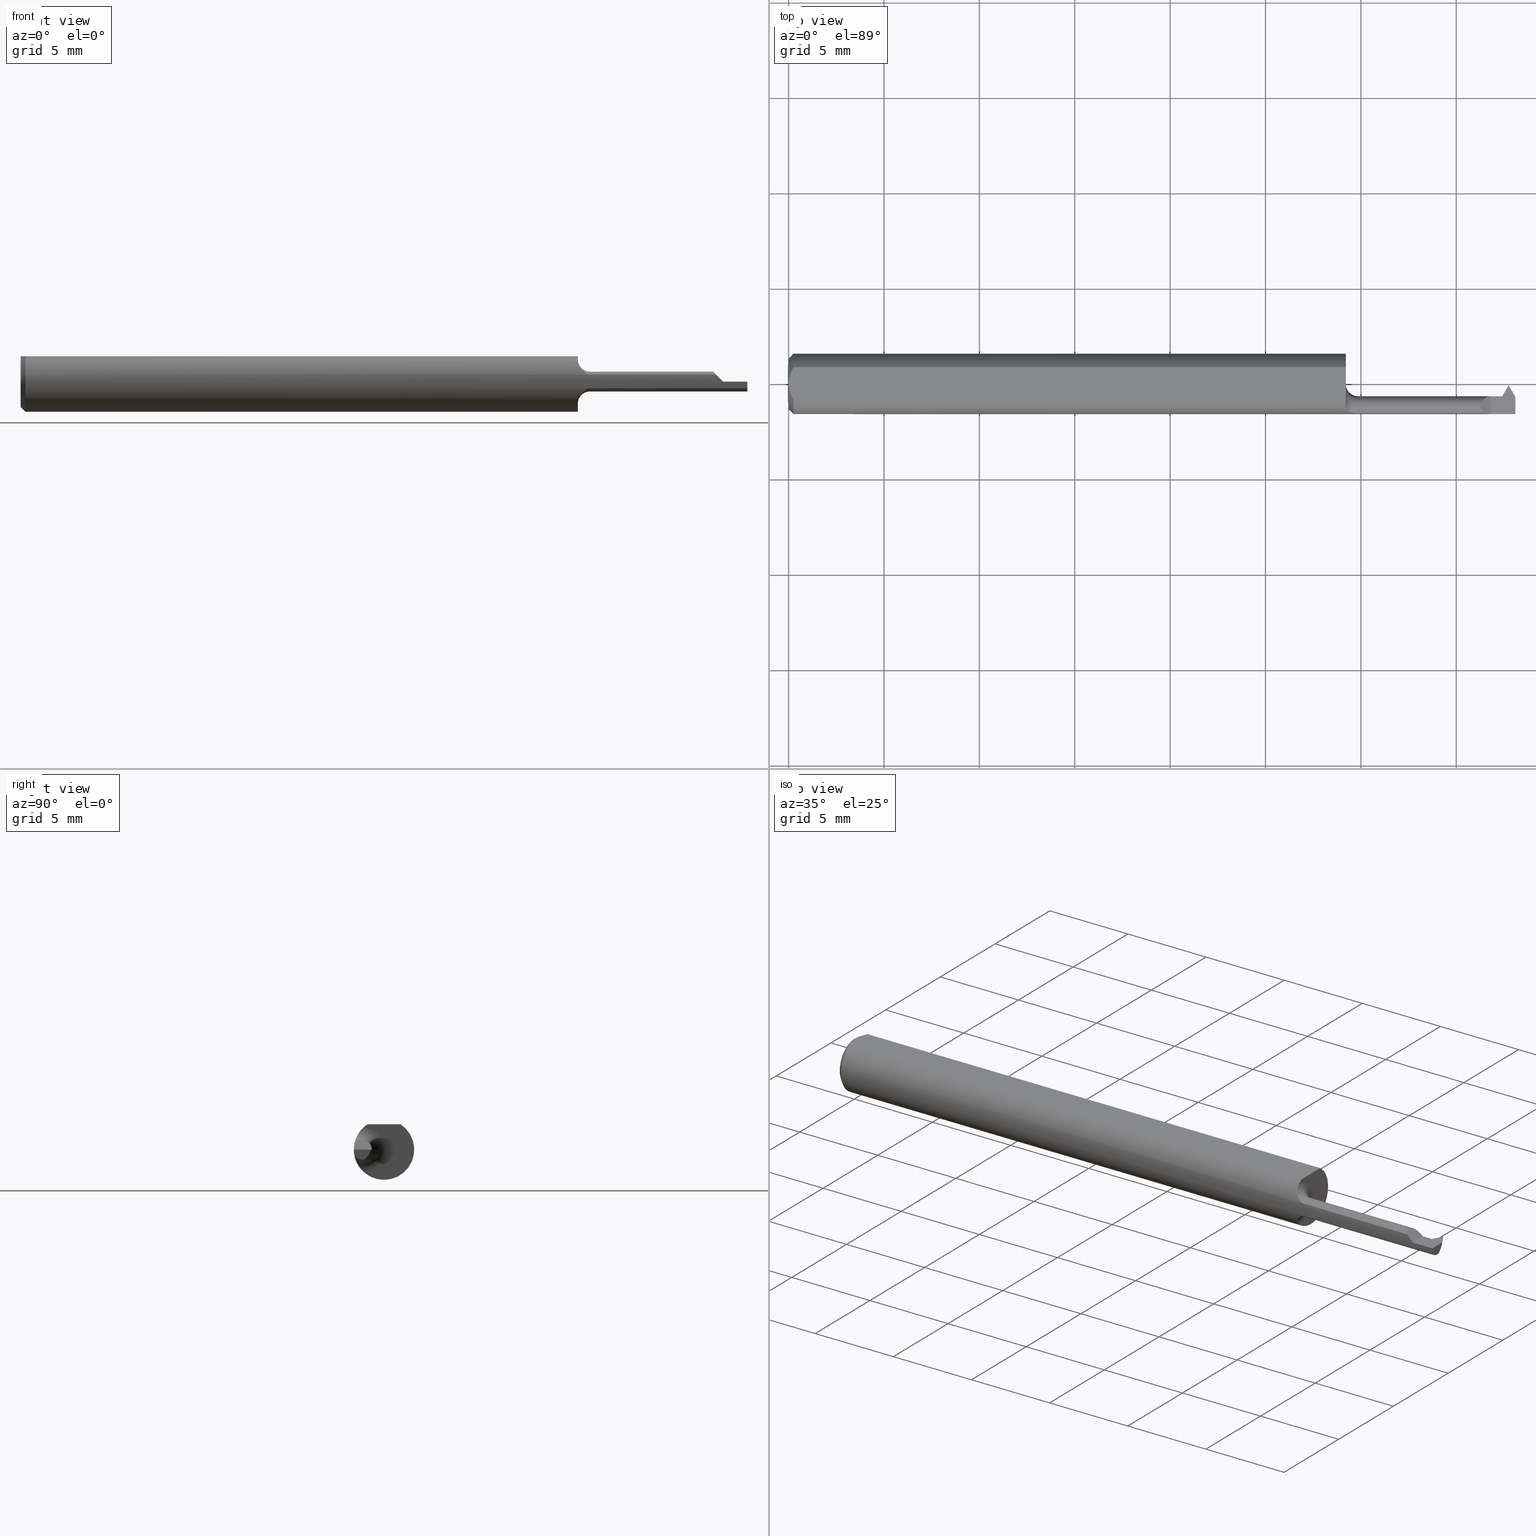
[diagram: canonical four-view strip — front | top / right | iso, engineering-drawing reading convention]
A machine part, canonical four-view strip (front | top / right | iso — engineering-drawing reading convention). The complete STEP part file that produces these views, byte-faithful:
ISO-10303-21;
HEADER;
FILE_DESCRIPTION (( 'STEP AP203' ),
    '1' );
FILE_NAME ('230028-TT060300.STEP',
    '2025-04-25T23:29:49',
    ( '' ),
    ( '' ),
    'SwSTEP 2.0',
    'SolidWorks 2024',
    '' );
FILE_SCHEMA (( 'CONFIG_CONTROL_DESIGN' ));
ENDSEC;

DATA;
#1 =( BOUNDED_CURVE ( )  B_SPLINE_CURVE ( 3, ( #279, #433, #429, #713 ),
 .UNSPECIFIED., .F., .F. ) 
 B_SPLINE_CURVE_WITH_KNOTS ( ( 4, 4 ),
 ( 5.470482129107343994, 7.853981633974481902 ),
 .UNSPECIFIED. ) 
 CURVE ( )  GEOMETRIC_REPRESENTATION_ITEM ( )  RATIONAL_B_SPLINE_CURVE ( ( 1.000000000000000000, 0.5800232588578038140, 0.5800232588578038140, 1.000000000000000000 ) ) 
 REPRESENTATION_ITEM ( '' )  );
#2 = LINE ( 'NONE', #468, #398 ) ;
#3 = ORIENTED_EDGE ( 'NONE', *, *, #378, .T. ) ;
#4 = FACE_OUTER_BOUND ( 'NONE', #236, .T. ) ;
#5 = ORIENTED_EDGE ( 'NONE', *, *, #427, .T. ) ;
#6 = VECTOR ( 'NONE', #292, 39.37007874015748143 ) ;
#7 = AXIS2_PLACEMENT_3D ( 'NONE', #301, #527, #259 ) ;
#8 = EDGE_CURVE ( 'NONE', #481, #241, #225, .T. ) ;
#9 = DIRECTION ( 'NONE',  ( 0.000000000000000000, 0.000000000000000000, 1.000000000000000000 ) ) ;
#10 = ORIENTED_EDGE ( 'NONE', *, *, #490, .F. ) ;
#11 = PLANE ( 'NONE',  #622 ) ;
#12 = ORIENTED_EDGE ( 'NONE', *, *, #600, .F. ) ;
#13 = CARTESIAN_POINT ( 'NONE',  ( 1.450000000000000178, -0.06235000000000005121, 6.123233995736799470E-18 ) ) ;
#14 = ORIENTED_EDGE ( 'NONE', *, *, #50, .T. ) ;
#15 = EDGE_CURVE ( 'NONE', #223, #37, #40, .T. ) ;
#16 = AXIS2_PLACEMENT_3D ( 'NONE', #54, #379, #443 ) ;
#17 = SECURITY_CLASSIFICATION ( '', '', #608 ) ;
#18 = LINE ( 'NONE', #146, #127 ) ;
#19 = ORIENTED_EDGE ( 'NONE', *, *, #217, .T. ) ;
#20 =( NAMED_UNIT ( * ) PLANE_ANGLE_UNIT ( ) SI_UNIT ( $, .RADIAN. ) );
#21 = CARTESIAN_POINT ( 'NONE',  ( 1.472798294077828807, -0.02534999999999998366, 0.000000000000000000 ) ) ;
#22 = CARTESIAN_POINT ( 'NONE',  ( 1.470389556322883484, -0.02534999999999997672, -0.002761655807752531541 ) ) ;
#23 = CARTESIAN_POINT ( 'NONE',  ( 1.158379651799175791, -0.05768568243143085139, -0.02390912192702897288 ) ) ;
#24 = CARTESIAN_POINT ( 'NONE',  ( 1.435905470200741219, -0.06073604143947652911, 0.01409452979925863644 ) ) ;
#25 = CARTESIAN_POINT ( 'NONE',  ( 1.474695953239303359, -0.03029403366202107484, -0.01581818553756987253 ) ) ;
#26 = ORIENTED_EDGE ( 'NONE', *, *, #306, .F. ) ;
#27 = APPLICATION_PROTOCOL_DEFINITION ( 'international standard', 'config_control_design', 1994, #123 ) ;
#28 = AXIS2_PLACEMENT_3D ( 'NONE', #536, #436, #392 ) ;
#29 = AXIS2_PLACEMENT_3D ( 'NONE', #375, #432, #590 ) ;
#30 = CARTESIAN_POINT ( 'NONE',  ( 1.450000000000000178, -0.2500000000000000555, 6.123233995736799470E-18 ) ) ;
#31 = ORIENTED_EDGE ( 'NONE', *, *, #493, .T. ) ;
#32 = CARTESIAN_POINT ( 'NONE',  ( 1.500000000000000222, -0.02673268590218017687, 0.000000000000000000 ) ) ;
#33 = EDGE_LOOP ( 'NONE', ( #291, #570, #555 ) ) ;
#34 = PERSON_AND_ORGANIZATION_ROLE ( 'design_owner' ) ;
#35 = DIRECTION ( 'NONE',  ( 1.000000000000000000, 2.651650034397991252E-17, 0.000000000000000000 ) ) ;
#36 = LINE ( 'NONE', #51, #598 ) ;
#37 = VERTEX_POINT ( 'NONE', #694 ) ;
#38 = EDGE_CURVE ( 'NONE', #346, #157, #465, .T. ) ;
#39 = DIRECTION ( 'NONE',  ( 1.000000000000000000, 2.651650034397991252E-17, 0.000000000000000000 ) ) ;
#40 = CIRCLE ( 'NONE', #372, 0.05235000000000033377 ) ;
#41 = APPROVAL ( #477, 'UNSPECIFIED' ) ;
#42 = CONICAL_SURFACE ( 'NONE', #439, 0.05235000000000033377, 0.7853981633974376209 ) ;
#43 = DIRECTION ( 'NONE',  ( 1.000000000000000000, -0.000000000000000000, -0.000000000000000000 ) ) ;
#44 = ORIENTED_EDGE ( 'NONE', *, *, #427, .F. ) ;
#45 = DIRECTION ( 'NONE',  ( 1.000000000000000000, 0.000000000000000000, -0.000000000000000000 ) ) ;
#46 = DIRECTION ( 'NONE',  ( 0.4999999999999913403, 0.8660254037844434816, -0.000000000000000000 ) ) ;
#47 = ORIENTED_EDGE ( 'NONE', *, *, #38, .F. ) ;
#48 = APPROVAL_DATE_TIME ( #704, #580 ) ;
#49 = CARTESIAN_POINT ( 'NONE',  ( 1.500000000000000222, -0.03961227801801520815, -0.02050000000000001821 ) ) ;
#50 = EDGE_CURVE ( 'NONE', #37, #178, #682, .T. ) ;
#51 = CARTESIAN_POINT ( 'NONE',  ( -3.937007874019685528E-05, -0.01620080838571287193, -0.02050000000000002168 ) ) ;
#52 = ORIENTED_EDGE ( 'NONE', *, *, #600, .T. ) ;
#53 = CALENDAR_DATE ( 2025, 25, 4 ) ;
#54 = CARTESIAN_POINT ( 'NONE',  ( 1.500000000000000222, 0.000000000000000000, 0.000000000000000000 ) ) ;
#55 = ORIENTED_EDGE ( 'NONE', *, *, #609, .T. ) ;
#56 = CIRCLE ( 'NONE', #196, 0.04549999999999999878 ) ;
#57 = DATE_TIME_ROLE ( 'classification_date' ) ;
#58 = LINE ( 'NONE', #449, #447 ) ;
#59 = ORIENTED_EDGE ( 'NONE', *, *, #720, .F. ) ;
#60 = DIRECTION ( 'NONE',  ( 1.000000000000000000, 2.651650034397991252E-17, 0.000000000000000000 ) ) ;
#61 = ORIENTED_EDGE ( 'NONE', *, *, #493, .F. ) ;
#62 = EDGE_CURVE ( 'NONE', #495, #534, #364, .T. ) ;
#63 = DIRECTION ( 'NONE',  ( 0.5000000000000024425, 0.8660254037844371533, 0.000000000000000000 ) ) ;
#64 = ORIENTED_EDGE ( 'NONE', *, *, #365, .T. ) ;
#65 = CIRCLE ( 'NONE', #482, 0.05235000000000033377 ) ;
#66 = CIRCLE ( 'NONE', #374, 0.02050000000000005984 ) ;
#67 = CARTESIAN_POINT ( 'NONE',  ( 1.470951421547187499, -0.02534999999999999060, 0.000000000000000000 ) ) ;
#68 = ORIENTED_EDGE ( 'NONE', *, *, #680, .T. ) ;
#69 = APPLICATION_CONTEXT ( 'configuration controlled 3d designs of mechanical parts and assemblies' ) ;
#70 = ADVANCED_FACE ( 'NONE', ( #262 ), #302, .F. ) ;
#71 = CARTESIAN_POINT ( 'NONE',  ( 1.500000000000000222, -8.354964170273410112E-19, -0.02050000000000002168 ) ) ;
#72 = ORIENTED_EDGE ( 'NONE', *, *, #263, .F. ) ;
#73 = LINE ( 'NONE', #30, #470 ) ;
#74 = CARTESIAN_POINT ( 'NONE',  ( 1.473739173235127708, -0.02697965050422822253, -0.008009988134029404766 ) ) ;
#75 = VECTOR ( 'NONE', #226, 39.37007874015748854 ) ;
#76 = AXIS2_PLACEMENT_3D ( 'NONE', #710, #606, #323 ) ;
#77 = VECTOR ( 'NONE', #134, 39.37007874015748143 ) ;
#78 = CARTESIAN_POINT ( 'NONE',  ( 1.160909952257189293, -0.05876722237226796736, 0.02098997094289236157 ) ) ;
#79 = DIRECTION ( 'NONE',  ( -0.7071067811865431318, 0.000000000000000000, -0.7071067811865520136 ) ) ;
#80 = EDGE_LOOP ( 'NONE', ( #389, #129, #276, #5 ) ) ;
#81 = LINE ( 'NONE', #310, #716 ) ;
#82 = CARTESIAN_POINT ( 'NONE',  ( 1.445250564478592015, -0.06235000000000000958, 0.004749435521407997275 ) ) ;
#83 = DIRECTION ( 'NONE',  ( 0.000000000000000000, 0.000000000000000000, -1.000000000000000000 ) ) ;
#84 = EDGE_CURVE ( 'NONE', #201, #346, #258, .T. ) ;
#85 = PERSON_AND_ORGANIZATION ( #289, #601 ) ;
#86 = CARTESIAN_POINT ( 'NONE',  ( 1.450000000000000178, -0.02534999999999998366, 4.286263797015756933E-17 ) ) ;
#87 = ORIENTED_EDGE ( 'NONE', *, *, #628, .T. ) ;
#88 = CARTESIAN_POINT ( 'NONE',  ( 1.170918043451032009, -0.06073604143947651524, -0.01409452979925870930 ) ) ;
#89 = CIRCLE ( 'NONE', #586, 0.02050000000000002862 ) ;
#90 = ORIENTED_EDGE ( 'NONE', *, *, #351, .F. ) ;
#91 = FACE_OUTER_BOUND ( 'NONE', #708, .T. ) ;
#92 = FACE_OUTER_BOUND ( 'NONE', #441, .T. ) ;
#93 = EDGE_CURVE ( 'NONE', #534, #452, #415, .T. ) ;
#94 = DIRECTION ( 'NONE',  ( 1.000000000000000000, 0.000000000000000000, 0.000000000000000000 ) ) ;
#95 = DATE_AND_TIME ( #224, #658 ) ;
#96 = DIRECTION ( 'NONE',  ( 0.4999999999999948375, -0.8660254037844414832, 0.000000000000000000 ) ) ;
#97 = CARTESIAN_POINT ( 'NONE',  ( -3.937007874019685528E-05, -0.003350000000000004884, 2.449293598294714858E-17 ) ) ;
#98 = ORIENTED_EDGE ( 'NONE', *, *, #173, .T. ) ;
#99 = CARTESIAN_POINT ( 'NONE',  ( 0.007163450771350382031, -0.02864528976618618133, 0.05234999999999997294 ) ) ;
#100 = AXIS2_PLACEMENT_3D ( 'NONE', #630, #79, #421 ) ;
#101 = AXIS2_PLACEMENT_3D ( 'NONE', #416, #187, #411 ) ;
#102 = LINE ( 'NONE', #655, #643 ) ;
#103 = VERTEX_POINT ( 'NONE', #640 ) ;
#104 = APPROVAL_STATUS ( 'not_yet_approved' ) ;
#105 = ADVANCED_FACE ( 'NONE', ( #691 ), #193, .F. ) ;
#106 = FACE_OUTER_BOUND ( 'NONE', #454, .T. ) ;
#107 = DIRECTION ( 'NONE',  ( -1.000000000000000000, -0.000000000000000000, -0.000000000000000000 ) ) ;
#108 = VERTEX_POINT ( 'NONE', #198 ) ;
#109 = EDGE_CURVE ( 'NONE', #663, #108, #636, .T. ) ;
#110 = B_SPLINE_CURVE_WITH_KNOTS ( 'NONE', 3,
 ( #199, #88, #305, #631, #23, #687, #195, #638 ),
 .UNSPECIFIED., .F., .F.,
 ( 4, 2, 2, 4 ),
 ( 1.967541529472493972E-07, 0.0003062111729972514249, 0.0006122255918415555687, 0.001224254429530158327 ),
 .UNSPECIFIED. ) ;
#111 = CARTESIAN_POINT ( 'NONE',  ( -3.937007874019685528E-05, -0.007390262258351511931, -0.01000000000000000021 ) ) ;
#112 = ORIENTED_EDGE ( 'NONE', *, *, #410, .F. ) ;
#113 = PERSON_AND_ORGANIZATION ( #289, #601 ) ;
#114 = CARTESIAN_POINT ( 'NONE',  ( 0.000000000000000000, 0.000000000000000000, 0.000000000000000000 ) ) ;
#115 = ORIENTED_EDGE ( 'NONE', *, *, #680, .F. ) ;
#116 = LOCAL_TIME ( 16, 29, 49.00000000000000000, #548 ) ;
#117 = LINE ( 'NONE', #71, #6 ) ;
#118 = EDGE_CURVE ( 'NONE', #125, #559, #303, .T. ) ;
#119 = EDGE_LOOP ( 'NONE', ( #621, #499, #122, #476 ) ) ;
#120 = EDGE_CURVE ( 'NONE', #393, #125, #102, .T. ) ;
#121 = DIRECTION ( 'NONE',  ( 0.7985882202808441965, 0.4610651239508180566, -0.3868795754558395084 ) ) ;
#122 = ORIENTED_EDGE ( 'NONE', *, *, #515, .F. ) ;
#123 = APPLICATION_CONTEXT ( 'configuration controlled 3d designs of mechanical parts and assemblies' ) ;
#124 = CARTESIAN_POINT ( 'NONE',  ( 1.485496473143827156, -0.002492545943572001006, 0.002122273262473488731 ) ) ;
#125 = VERTEX_POINT ( 'NONE', #332 ) ;
#126 = AXIS2_PLACEMENT_3D ( 'NONE', #97, #591, #541 ) ;
#127 = VECTOR ( 'NONE', #370, 39.37007874015748854 ) ;
#128 = CARTESIAN_POINT ( 'NONE',  ( 1.486000000000000210, -0.006553020584689930698, -0.009999999999999849287 ) ) ;
#129 = ORIENTED_EDGE ( 'NONE', *, *, #263, .T. ) ;
#130 = ADVANCED_FACE ( 'NONE', ( #267 ), #383, .F. ) ;
#131 = DIRECTION ( 'NONE',  ( 0.000000000000000000, -1.000000000000000000, 0.000000000000000000 ) ) ;
#132 = ORIENTED_EDGE ( 'NONE', *, *, #355, .T. ) ;
#133 = CARTESIAN_POINT ( 'NONE',  ( 1.475684376837079537, -0.05035398955201254856, -0.02050000000000002168 ) ) ;
#134 = DIRECTION ( 'NONE',  ( -1.000000000000000000, -2.651650034397991252E-17, -0.000000000000000000 ) ) ;
#135 = DIRECTION ( 'NONE',  ( 0.000000000000000000, 0.3768974211598614676, 0.9262550048032377470 ) ) ;
#136 = CIRCLE ( 'NONE', #16, 0.06235000000000000264 ) ;
#137 = DIRECTION ( 'NONE',  ( -0.02294223196863902012, 0.9997367923570168458, -4.062482139983457839E-17 ) ) ;
#138 = VECTOR ( 'NONE', #274, 39.37007874015748143 ) ;
#139 = LOCAL_TIME ( 16, 29, 49.00000000000000000, #385 ) ;
#140 = LINE ( 'NONE', #21, #556 ) ;
#141 = ORIENTED_EDGE ( 'NONE', *, *, #181, .F. ) ;
#142 = EDGE_CURVE ( 'NONE', #157, #663, #165, .T. ) ;
#143 = DIRECTION ( 'NONE',  ( -0.000000000000000000, 1.000000000000000000, -0.000000000000000000 ) ) ;
#144 = DIRECTION ( 'NONE',  ( -0.8486396879976035867, -0.4899623523104097989, 0.1993679344171976342 ) ) ;
#145 =( LENGTH_UNIT ( ) NAMED_UNIT ( * ) SI_UNIT ( $, .METRE. ) );
#146 = CARTESIAN_POINT ( 'NONE',  ( 1.486483381705665519, -0.007390262258356652784, -0.01000000000000612725 ) ) ;
#147 = DIRECTION ( 'NONE',  ( 0.4999999999999948375, -0.8660254037844414832, 0.000000000000000000 ) ) ;
#148 = APPROVAL_ROLE ( '' ) ;
#149 = ADVANCED_FACE ( 'NONE', ( #326 ), #491, .F. ) ;
#150 = LOCAL_TIME ( 16, 29, 49.00000000000000000, #215 ) ;
#151 = LINE ( 'NONE', #475, #575 ) ;
#152 = FACE_OUTER_BOUND ( 'NONE', #80, .T. ) ;
#153 = PRODUCT_DEFINITION ( 'UNKNOWN', '', #408, #503 ) ;
#154 = PERSON_AND_ORGANIZATION ( #289, #601 ) ;
#155 = PLANE ( 'NONE',  #530 ) ;
#156 = B_SPLINE_CURVE_WITH_KNOTS ( 'NONE', 3,
 ( #356, #418, #461, #681, #78, #367, #200, #581 ),
 .UNSPECIFIED., .F., .F.,
 ( 4, 2, 2, 4 ),
 ( 4.183662842068004843E-06, 0.0006133011813381103417, 0.0009178599405861313700, 0.001222418699834152507 ),
 .UNSPECIFIED. ) ;
#157 = VERTEX_POINT ( 'NONE', #546 ) ;
#158 = CARTESIAN_POINT ( 'NONE',  ( 1.500000000000000222, -0.04584999999999998799, -0.02050000000000002168 ) ) ;
#159 = CARTESIAN_POINT ( 'NONE',  ( 1.473972926476223799, -0.02738452299423695113, -0.009999999999999849287 ) ) ;
#160 = ORIENTED_EDGE ( 'NONE', *, *, #15, .F. ) ;
#161 = PERSON_AND_ORGANIZATION ( #289, #601 ) ;
#162 = CARTESIAN_POINT ( 'NONE',  ( 1.150000000000000355, -0.04274258451472191106, 0.04539376575039632405 ) ) ;
#163 = VECTOR ( 'NONE', #445, 39.37007874015748143 ) ;
#164 = AXIS2_PLACEMENT_3D ( 'NONE', #540, #325, #423 ) ;
#165 = LINE ( 'NONE', #376, #406 ) ;
#166 = ORIENTED_EDGE ( 'NONE', *, *, #142, .T. ) ;
#167 = EDGE_CURVE ( 'NONE', #711, #652, #456, .T. ) ;
#168 = DIRECTION ( 'NONE',  ( 0.000000000000000000, -0.7660444431189816772, 0.6427876096865350330 ) ) ;
#169 = ORIENTED_EDGE ( 'NONE', *, *, #313, .T. ) ;
#170 = APPROVAL_DATE_TIME ( #602, #41 ) ;
#171 = FACE_OUTER_BOUND ( 'NONE', #327, .T. ) ;
#172 = ORIENTED_EDGE ( 'NONE', *, *, #237, .T. ) ;
#173 = EDGE_CURVE ( 'NONE', #538, #481, #551, .T. ) ;
#174 = LINE ( 'NONE', #396, #282 ) ;
#175 = CIRCLE ( 'NONE', #588, 0.06235000000000000264 ) ;
#176 = ORIENTED_EDGE ( 'NONE', *, *, #230, .F. ) ;
#177 = DIRECTION ( 'NONE',  ( 5.352393807291129247E-15, -0.6427876096865350330, -0.7660444431189816772 ) ) ;
#178 = VERTEX_POINT ( 'NONE', #218 ) ;
#179 = DIRECTION ( 'NONE',  ( 1.000000000000000000, 0.000000000000000000, 0.000000000000000000 ) ) ;
#180 = VERTEX_POINT ( 'NONE', #604 ) ;
#181 = EDGE_CURVE ( 'NONE', #37, #223, #65, .T. ) ;
#182 = DIRECTION ( 'NONE',  ( -0.5000000000000025535, -0.8660254037844371533, 3.001275745718280195E-17 ) ) ;
#183 = ORIENTED_EDGE ( 'NONE', *, *, #313, .F. ) ;
#184 = VECTOR ( 'NONE', #190, 39.37007874015748143 ) ;
#185 = AXIS2_PLACEMENT_3D ( 'NONE', #678, #254, #689 ) ;
#186 = CC_DESIGN_SECURITY_CLASSIFICATION ( #17, ( #408 ) ) ;
#187 = DIRECTION ( 'NONE',  ( -1.000000000000000000, 0.000000000000000000, -0.000000000000000000 ) ) ;
#188 = ORIENTED_EDGE ( 'NONE', *, *, #705, .F. ) ;
#189 = CYLINDRICAL_SURFACE ( 'NONE', #7, 0.02050000000000004596 ) ;
#190 = DIRECTION ( 'NONE',  ( 1.000000000000000000, 2.311211206665187276E-15, -0.000000000000000000 ) ) ;
#191 = MECHANICAL_CONTEXT ( 'NONE', #69, 'mechanical' ) ;
#192 = PLANE ( 'NONE',  #101 ) ;
#193 = PLANE ( 'NONE',  #255 ) ;
#194 = EDGE_LOOP ( 'NONE', ( #412, #55, #444, #594, #12 ) ) ;
#195 = CARTESIAN_POINT ( 'NONE',  ( 1.150000000000000133, -0.04862953753773308768, -0.03985063481687036585 ) ) ;
#196 = AXIS2_PLACEMENT_3D ( 'NONE', #256, #463, #696 ) ;
#197 = LINE ( 'NONE', #360, #484 ) ;
#198 = CARTESIAN_POINT ( 'NONE',  ( 1.486500000000000155, -0.003350000000000004884, 0.000000000000000000 ) ) ;
#199 = CARTESIAN_POINT ( 'NONE',  ( 1.175000000000000266, -0.06073604143947652911, -0.01409452979925869716 ) ) ;
#200 = CARTESIAN_POINT ( 'NONE',  ( 1.170918107686049092, -0.06073604143947840955, 0.01409452979925070008 ) ) ;
#201 = VERTEX_POINT ( 'NONE', #336 ) ;
#202 = EDGE_CURVE ( 'NONE', #715, #103, #36, .T. ) ;
#203 = CARTESIAN_POINT ( 'NONE',  ( 0.009999999999999887451, 0.03386738844375224849, 0.05234999999999997294 ) ) ;
#204 = DIRECTION ( 'NONE',  ( -1.000000000000000000, -2.651650034397991252E-17, -0.000000000000000000 ) ) ;
#205 = ORIENTED_EDGE ( 'NONE', *, *, #511, .T. ) ;
#206 = ADVANCED_FACE ( 'NONE', ( #707 ), #494, .T. ) ;
#207 = SHAPE_DEFINITION_REPRESENTATION ( #510, #634 ) ;
#208 = CARTESIAN_POINT ( 'NONE',  ( 0.000000000000000000, 0.03386738844375224849, 0.05234999999999997294 ) ) ;
#209 = DIRECTION ( 'NONE',  ( -0.7985882202808476382, 0.4610651239508146704, -0.3868795754558365663 ) ) ;
#210 = ORIENTED_EDGE ( 'NONE', *, *, #84, .F. ) ;
#211 = DATE_AND_TIME ( #646, #150 ) ;
#212 = CYLINDRICAL_SURFACE ( 'NONE', #29, 0.06235000000000000264 ) ;
#213 = CARTESIAN_POINT ( 'NONE',  ( 0.000000000000000000, 0.000000000000000000, 0.000000000000000000 ) ) ;
#214 = VERTEX_POINT ( 'NONE', #648 ) ;
#215 = COORDINATED_UNIVERSAL_TIME_OFFSET ( 8, 0, .BEHIND. ) ;
#216 = DIRECTION ( 'NONE',  ( 0.000000000000000000, 0.000000000000000000, 1.000000000000000000 ) ) ;
#217 = EDGE_CURVE ( 'NONE', #633, #446, #1, .T. ) ;
#218 = CARTESIAN_POINT ( 'NONE',  ( 0.009999999999999887451, 0.000000000000000000, -0.06235000000000000264 ) ) ;
#219 = ORIENTED_EDGE ( 'NONE', *, *, #237, .F. ) ;
#220 = CLOSED_SHELL ( 'NONE', ( #402, #448, #395, #130, #105, #430, #391, #549, #637, #70, #664, #584, #565, #149, #690, #460, #661, #247, #328, #206, #319 ) ) ;
#221 = TOROIDAL_SURFACE ( 'NONE', #318, 0.04550000000000000572, 0.02499999999999994241 ) ;
#222 = CARTESIAN_POINT ( 'NONE',  ( 0.000000000000000000, 0.000000000000000000, 0.05234999999999997294 ) ) ;
#223 = VERTEX_POINT ( 'NONE', #222 ) ;
#224 = CALENDAR_DATE ( 2025, 25, 4 ) ;
#225 =( BOUNDED_CURVE ( )  B_SPLINE_CURVE ( 3, ( #644, #357, #25, #74 ),
 .UNSPECIFIED., .F., .F. ) 
 B_SPLINE_CURVE_WITH_KNOTS ( ( 4, 4 ),
 ( 3.342305517569140960, 4.511676116405312520 ),
 .UNSPECIFIED. ) 
 CURVE ( )  GEOMETRIC_REPRESENTATION_ITEM ( )  RATIONAL_B_SPLINE_CURVE ( ( 1.000000000000000000, 0.8892572147114506942, 0.8892572147114506942, 1.000000000000000000 ) ) 
 REPRESENTATION_ITEM ( '' )  );
#226 = DIRECTION ( 'NONE',  ( 0.000000000000000000, -0.6427876096865403621, -0.7660444431189770143 ) ) ;
#227 = ORIENTED_EDGE ( 'NONE', *, *, #167, .F. ) ;
#228 = EDGE_CURVE ( 'NONE', #214, #352, #440, .T. ) ;
#229 = DIRECTION ( 'NONE',  ( 0.1955200734030768106, 0.1955200734030772547, 0.9610118635026889677 ) ) ;
#230 = EDGE_CURVE ( 'NONE', #495, #562, #554, .T. ) ;
#231 = ORIENTED_EDGE ( 'NONE', *, *, #142, .F. ) ;
#232 = PRODUCT_RELATED_PRODUCT_CATEGORY ( 'detail', '', ( #300 ) ) ;
#233 = DIMENSIONAL_EXPONENTS ( 1.000000000000000000, 0.000000000000000000, 0.000000000000000000, 0.000000000000000000, 0.000000000000000000, 0.000000000000000000, 0.000000000000000000 ) ;
#234 = AXIS2_PLACEMENT_3D ( 'NONE', #159, #209, #718 ) ;
#235 = CARTESIAN_POINT ( 'NONE',  ( 1.485516618294334901, -0.007390262258346401436, -0.009999999999993909594 ) ) ;
#236 = EDGE_LOOP ( 'NONE', ( #299, #564, #64, #627 ) ) ;
#237 = EDGE_CURVE ( 'NONE', #459, #452, #136, .T. ) ;
#238 = CARTESIAN_POINT ( 'NONE',  ( 1.486000000000000210, -0.006553020584689930698, -0.009999999999999849287 ) ) ;
#239 = ORIENTED_EDGE ( 'NONE', *, *, #167, .T. ) ;
#240 = LINE ( 'NONE', #238, #676 ) ;
#241 = VERTEX_POINT ( 'NONE', #284 ) ;
#242 = CARTESIAN_POINT ( 'NONE',  ( 1.671951421547187788, -0.04584999999999998799, -0.02050000000000002168 ) ) ;
#243 = ORIENTED_EDGE ( 'NONE', *, *, #419, .F. ) ;
#244 = CC_DESIGN_APPROVAL ( #358, ( #408 ) ) ;
#245 = CARTESIAN_POINT ( 'NONE',  ( 0.009999999999999887451, 0.03386738844375224849, 0.05234999999999997294 ) ) ;
#246 = DIRECTION ( 'NONE',  ( 0.7071067811865550112, 0.000000000000000000, -0.7071067811865400232 ) ) ;
#247 = ADVANCED_FACE ( 'NONE', ( #152 ), #593, .F. ) ;
#248 = LINE ( 'NONE', #133, #623 ) ;
#249 = CARTESIAN_POINT ( 'NONE',  ( 1.500000000000000222, -0.03080173189065360181, -0.009999999999999849287 ) ) ;
#250 = CARTESIAN_POINT ( 'NONE',  ( 0.000000000000000000, 0.000000000000000000, 0.000000000000000000 ) ) ;
#251 = CC_DESIGN_PERSON_AND_ORGANIZATION_ASSIGNMENT ( #483, #653, ( #153 ) ) ;
#252 = CARTESIAN_POINT ( 'NONE',  ( 0.001063697276021325104, 0.01189177144351695990, 0.05234999999999997988 ) ) ;
#253 = CC_DESIGN_DATE_AND_TIME_ASSIGNMENT ( #539, #57, ( #17 ) ) ;
#254 = DIRECTION ( 'NONE',  ( 0.8486396879976055851, -0.4899623523104063572, 0.1993679344171976342 ) ) ;
#255 = AXIS2_PLACEMENT_3D ( 'NONE', #417, #144, #147 ) ;
#256 = CARTESIAN_POINT ( 'NONE',  ( 1.150000000000000355, -0.04585000000000003656, 0.000000000000000000 ) ) ;
#257 = CC_DESIGN_APPROVAL ( #41, ( #153 ) ) ;
#258 =( BOUNDED_CURVE ( )  B_SPLINE_CURVE ( 3, ( #522, #361, #22, #587 ),
 .UNSPECIFIED., .F., .F. ) 
 B_SPLINE_CURVE_WITH_KNOTS ( ( 4, 4 ),
 ( 1.169370598836199759, 1.570796326794896780 ),
 .UNSPECIFIED. ) 
 CURVE ( )  GEOMETRIC_REPRESENTATION_ITEM ( )  RATIONAL_B_SPLINE_CURVE ( ( 1.000000000000000000, 0.9866164697472196154, 0.9866164697472196154, 1.000000000000000000 ) ) 
 REPRESENTATION_ITEM ( '' )  );
#259 = DIRECTION ( 'NONE',  ( 0.000000000000000000, -1.000000000000000000, 0.000000000000000000 ) ) ;
#260 = DIRECTION ( 'NONE',  ( -1.000000000000000000, -0.000000000000000000, -0.000000000000000000 ) ) ;
#261 = CARTESIAN_POINT ( 'NONE',  ( 1.150000000000000355, 0.06234999999999999570, 0.05234999999999997294 ) ) ;
#262 = FACE_OUTER_BOUND ( 'NONE', #33, .T. ) ;
#263 = EDGE_CURVE ( 'NONE', #214, #663, #271, .T. ) ;
#264 = EDGE_LOOP ( 'NONE', ( #525, #666 ) ) ;
#265 = DIRECTION ( 'NONE',  ( -1.000000000000000000, -2.651650034397990944E-17, -0.000000000000000000 ) ) ;
#266 = FACE_OUTER_BOUND ( 'NONE', #400, .T. ) ;
#267 = FACE_OUTER_BOUND ( 'NONE', #119, .T. ) ;
#268 = EDGE_LOOP ( 'NONE', ( #670, #272 ) ) ;
#269 = AXIS2_PLACEMENT_3D ( 'NONE', #535, #35, #700 ) ;
#270 = CARTESIAN_POINT ( 'NONE',  ( 1.323475710773593939, -0.06073604143947651524, 0.01409452979925868155 ) ) ;
#271 = LINE ( 'NONE', #124, #163 ) ;
#272 = ORIENTED_EDGE ( 'NONE', *, *, #285, .F. ) ;
#273 = EDGE_CURVE ( 'NONE', #424, #214, #58, .T. ) ;
#274 = DIRECTION ( 'NONE',  ( -1.000000000000000000, -0.000000000000000000, -0.000000000000000000 ) ) ;
#275 = CARTESIAN_POINT ( 'NONE',  ( -3.937007874019685528E-05, -0.007390262258351511931, -0.01000000000000000021 ) ) ;
#276 = ORIENTED_EDGE ( 'NONE', *, *, #109, .T. ) ;
#277 = COORDINATED_UNIVERSAL_TIME_OFFSET ( 8, 0, .BEHIND. ) ;
#278 = LINE ( 'NONE', #261, #667 ) ;
#279 = CARTESIAN_POINT ( 'NONE',  ( 1.435905470200741219, -0.06073604143947652911, 0.01409452979925863644 ) ) ;
#280 = ORIENTED_EDGE ( 'NONE', *, *, #8, .F. ) ;
#281 = APPROVAL_STATUS ( 'not_yet_approved' ) ;
#282 = VECTOR ( 'NONE', #60, 39.37007874015748143 ) ;
#283 =( BOUNDED_CURVE ( )  B_SPLINE_CURVE ( 3, ( #531, #82, #311, #24 ),
 .UNSPECIFIED., .F., .F. ) 
 B_SPLINE_CURVE_WITH_KNOTS ( ( 4, 4 ),
 ( 4.712388980384689674, 4.940414924607587466 ),
 .UNSPECIFIED. ) 
 CURVE ( )  GEOMETRIC_REPRESENTATION_ITEM ( )  RATIONAL_B_SPLINE_CURVE ( ( 1.000000000000000000, 0.9956717057219215405, 0.9956717057219215405, 1.000000000000000000 ) ) 
 REPRESENTATION_ITEM ( '' )  );
#284 = CARTESIAN_POINT ( 'NONE',  ( 1.473739173235127708, -0.02697965050422822253, -0.008009988134029404766 ) ) ;
#285 = EDGE_CURVE ( 'NONE', #201, #346, #567, .T. ) ;
#286 = ORIENTED_EDGE ( 'NONE', *, *, #50, .F. ) ;
#287 = DIRECTION ( 'NONE',  ( 0.1120836188533305133, 0.000000000000000000, -0.9936987784961504033 ) ) ;
#288 = ORIENTED_EDGE ( 'NONE', *, *, #118, .T. ) ;
#289 = PERSON ( 'UNSPECIFIED', 'UNSPECIFIED', 'UNSPECIFIED', ('UNSPECIFIED'), ('UNSPECIFIED'), ('UNSPECIFIED') ) ;
#290 = DIRECTION ( 'NONE',  ( 0.000000000000000000, 0.000000000000000000, -1.000000000000000000 ) ) ;
#291 = ORIENTED_EDGE ( 'NONE', *, *, #217, .F. ) ;
#292 = DIRECTION ( 'NONE',  ( 0.000000000000000000, 1.000000000000000000, -4.075592278182146697E-17 ) ) ;
#293 = LOCAL_TIME ( 16, 29, 49.00000000000000000, #699 ) ;
#294 = ORIENTED_EDGE ( 'NONE', *, *, #672, .T. ) ;
#295 = EDGE_CURVE ( 'NONE', #214, #715, #298, .T. ) ;
#296 = DIRECTION ( 'NONE',  ( -0.5000000000000068834, 0.8660254037844345998, 0.000000000000000000 ) ) ;
#297 = EDGE_LOOP ( 'NONE', ( #673, #44, #87, #703 ) ) ;
#298 = LINE ( 'NONE', #235, #528 ) ;
#299 = ORIENTED_EDGE ( 'NONE', *, *, #490, .T. ) ;
#300 = PRODUCT ( '230028-TT060300', '230028-TT060300', '', ( #191 ) ) ;
#301 = CARTESIAN_POINT ( 'NONE',  ( 1.150000000000000133, -0.04585000000000003656, 0.000000000000000000 ) ) ;
#302 = PLANE ( 'NONE',  #100 ) ;
#303 = CIRCLE ( 'NONE', #28, 0.06235000000000000264 ) ;
#304 =( GEOMETRIC_REPRESENTATION_CONTEXT ( 3 ) GLOBAL_UNCERTAINTY_ASSIGNED_CONTEXT ( ( #669 ) ) GLOBAL_UNIT_ASSIGNED_CONTEXT ( ( #683, #20, #366 ) ) REPRESENTATION_CONTEXT ( 'NONE', 'WORKASPACE' ) );
#305 = CARTESIAN_POINT ( 'NONE',  ( 1.167174290130400749, -0.06030086259927003312, -0.01605959189429562520 ) ) ;
#306 = EDGE_CURVE ( 'NONE', #384, #424, #451, .T. ) ;
#307 = LINE ( 'NONE', #457, #645 ) ;
#308 = CARTESIAN_POINT ( 'NONE',  ( 1.500000000000000222, -0.02293526333106358367, 0.009332464125185995635 ) ) ;
#309 = ORIENTED_EDGE ( 'NONE', *, *, #511, .F. ) ;
#310 = CARTESIAN_POINT ( 'NONE',  ( 2.249639673992810223E-32, -0.06234999999999999570, 1.836970198721039302E-16 ) ) ;
#311 = CARTESIAN_POINT ( 'NONE',  ( 1.440531964389071051, -0.06180967512810753295, 0.009468035610928888721 ) ) ;
#312 = CARTESIAN_POINT ( 'NONE',  ( 1.472798294077828807, -0.02534999999999998366, 0.000000000000000000 ) ) ;
#313 = EDGE_CURVE ( 'NONE', #538, #562, #117, .T. ) ;
#314 = CARTESIAN_POINT ( 'NONE',  ( 1.500000000000000222, -0.06073604143947643891, -0.01409452979925867287 ) ) ;
#315 = CARTESIAN_POINT ( 'NONE',  ( 0.000000000000000000, 0.000000000000000000, -0.05235000000000033377 ) ) ;
#316 = AXIS2_PLACEMENT_3D ( 'NONE', #67, #668, #349 ) ;
#317 = DIRECTION ( 'NONE',  ( -1.000000000000000000, -0.000000000000000000, -0.000000000000000000 ) ) ;
#318 = AXIS2_PLACEMENT_3D ( 'NONE', #523, #265, #373 ) ;
#319 = ADVANCED_FACE ( 'NONE', ( #4 ), #11, .T. ) ;
#320 = PLANE ( 'NONE',  #185 ) ;
#321 = ORIENTED_EDGE ( 'NONE', *, *, #560, .T. ) ;
#322 = FACE_OUTER_BOUND ( 'NONE', #698, .T. ) ;
#323 = DIRECTION ( 'NONE',  ( 0.000000000000000000, 1.000000000000000000, 0.000000000000000000 ) ) ;
#324 = CALENDAR_DATE ( 2025, 25, 4 ) ;
#325 = DIRECTION ( 'NONE',  ( 2.264812959007734540E-15, -0.9799247046208295897, 0.1993679344171976342 ) ) ;
#326 = FACE_OUTER_BOUND ( 'NONE', #264, .T. ) ;
#327 = EDGE_LOOP ( 'NONE', ( #141, #14, #576, #52 ) ) ;
#328 = ADVANCED_FACE ( 'NONE', ( #561 ), #514, .F. ) ;
#329 = VECTOR ( 'NONE', #401, 39.37007874015748854 ) ;
#330 = VECTOR ( 'NONE', #464, 39.37007874015748143 ) ;
#331 = PLANE ( 'NONE',  #269 ) ;
#332 = CARTESIAN_POINT ( 'NONE',  ( 1.150000000000000355, -0.03386738844375224849, 0.05234999999999997294 ) ) ;
#333 = VERTEX_POINT ( 'NONE', #404 ) ;
#334 = PERSON_AND_ORGANIZATION ( #289, #601 ) ;
#335 = DIRECTION ( 'NONE',  ( 0.000000000000000000, 0.000000000000000000, -1.000000000000000000 ) ) ;
#336 = CARTESIAN_POINT ( 'NONE',  ( 1.469321771042962466, -0.02697965050422498207, -0.008009988134030174983 ) ) ;
#337 = ORIENTED_EDGE ( 'NONE', *, *, #355, .F. ) ;
#338 = PERSON_AND_ORGANIZATION ( #289, #601 ) ;
#339 = EDGE_CURVE ( 'NONE', #715, #384, #665, .T. ) ;
#340 = DIRECTION ( 'NONE',  ( 1.000000000000000000, -0.000000000000000000, -0.000000000000000000 ) ) ;
#341 = ORIENTED_EDGE ( 'NONE', *, *, #339, .T. ) ;
#342 = APPROVAL_ROLE ( '' ) ;
#343 = VECTOR ( 'NONE', #701, 39.37007874015748143 ) ;
#344 = CIRCLE ( 'NONE', #702, 0.06235000000000000264 ) ;
#345 = DIRECTION ( 'NONE',  ( 1.000000000000000000, 0.000000000000000000, 0.000000000000000000 ) ) ;
#346 = VERTEX_POINT ( 'NONE', #620 ) ;
#347 = DIRECTION ( 'NONE',  ( 0.000000000000000000, -1.000000000000000000, 4.075592278182146697E-17 ) ) ;
#348 = VERTEX_POINT ( 'NONE', #13 ) ;
#349 = DIRECTION ( 'NONE',  ( 0.1993679344171976064, 0.000000000000000000, 0.9799247046208294787 ) ) ;
#350 = EDGE_LOOP ( 'NONE', ( #205, #243, #321, #19, #132, #210, #409, #280, #582, #90 ) ) ;
#351 = EDGE_CURVE ( 'NONE', #459, #538, #89, .T. ) ;
#352 = VERTEX_POINT ( 'NONE', #557 ) ;
#353 = FACE_OUTER_BOUND ( 'NONE', #380, .T. ) ;
#354 = ORIENTED_EDGE ( 'NONE', *, *, #93, .T. ) ;
#355 = EDGE_CURVE ( 'NONE', #446, #346, #174, .T. ) ;
#356 = CARTESIAN_POINT ( 'NONE',  ( 1.150000000000000355, -0.04274258451472191106, 0.04539376575039632405 ) ) ;
#357 = CARTESIAN_POINT ( 'NONE',  ( 1.475386358967280875, -0.03736748372183605615, -0.02050000000000005290 ) ) ;
#358 = APPROVAL ( #104, 'UNSPECIFIED' ) ;
#359 = CARTESIAN_POINT ( 'NONE',  ( 1.150000000000000355, -0.04274258451472191106, -0.04539376575039632405 ) ) ;
#360 = CARTESIAN_POINT ( 'NONE',  ( 1.150000000000000133, -0.02697965050422639066, -0.008009988134033486570 ) ) ;
#361 = CARTESIAN_POINT ( 'NONE',  ( 1.469838970708920556, -0.02590058561396285305, -0.005467870559428829325 ) ) ;
#362 = CARTESIAN_POINT ( 'NONE',  ( 1.485516618294335345, -0.01620080838571287887, -0.02050000000000002862 ) ) ;
#363 = DIRECTION ( 'NONE',  ( -0.001540819590689057042, -0.3746061487342010610, -0.9271827539409469576 ) ) ;
#364 = LINE ( 'NONE', #308, #497 ) ;
#365 = EDGE_CURVE ( 'NONE', #352, #495, #240, .T. ) ;
#366 =( NAMED_UNIT ( * ) SI_UNIT ( $, .STERADIAN. ) SOLID_ANGLE_UNIT ( ) );
#367 = CARTESIAN_POINT ( 'NONE',  ( 1.167156662623709762, -0.06029909404253414734, 0.01606812257809486083 ) ) ;
#368 = DIRECTION ( 'NONE',  ( 1.000000000000000000, 2.651650034397991252E-17, 0.000000000000000000 ) ) ;
#369 = LENGTH_MEASURE_WITH_UNIT ( LENGTH_MEASURE( 0.02539999999999999897 ), #145 );
#370 = DIRECTION ( 'NONE',  ( 5.380149382906780249E-15, 0.6427876096865350330, 0.7660444431189816772 ) ) ;
#371 = CARTESIAN_POINT ( 'NONE',  ( 1.150000000000000133, -0.003350000000000021797, 4.286263797015756933E-17 ) ) ;
#372 = AXIS2_PLACEMENT_3D ( 'NONE', #250, #260, #83 ) ;
#373 = DIRECTION ( 'NONE',  ( 2.651650034397990944E-17, -1.000000000000000000, 0.000000000000000000 ) ) ;
#374 = AXIS2_PLACEMENT_3D ( 'NONE', #632, #693, #131 ) ;
#375 = CARTESIAN_POINT ( 'NONE',  ( 0.000000000000000000, 0.000000000000000000, 0.000000000000000000 ) ) ;
#376 = CARTESIAN_POINT ( 'NONE',  ( 1.485500000000000265, -0.003350000000000004884, 0.000000000000000000 ) ) ;
#377 = CARTESIAN_POINT ( 'NONE',  ( 0.009999999999999887451, -0.03386738844375224849, 0.05234999999999997294 ) ) ;
#378 = EDGE_CURVE ( 'NONE', #178, #434, #175, .T. ) ;
#379 = DIRECTION ( 'NONE',  ( -1.000000000000000000, -0.000000000000000000, -0.000000000000000000 ) ) ;
#380 = EDGE_LOOP ( 'NONE', ( #26, #474, #403, #61 ) ) ;
#381 = CC_DESIGN_PERSON_AND_ORGANIZATION_ASSIGNMENT ( #338, #394, ( #408 ) ) ;
#382 = DIRECTION ( 'NONE',  ( 1.000000000000000000, 0.000000000000000000, 0.000000000000000000 ) ) ;
#383 = PLANE ( 'NONE',  #656 ) ;
#384 = VERTEX_POINT ( 'NONE', #453 ) ;
#385 = COORDINATED_UNIVERSAL_TIME_OFFSET ( 8, 0, .BEHIND. ) ;
#386 = VECTOR ( 'NONE', #39, 39.37007874015748143 ) ;
#387 = LINE ( 'NONE', #208, #138 ) ;
#388 = CARTESIAN_POINT ( 'NONE',  ( 1.671951421547187788, -0.04584999999999998799, -0.02050000000000002168 ) ) ;
#389 = ORIENTED_EDGE ( 'NONE', *, *, #228, .F. ) ;
#390 = APPROVAL_DATE_TIME ( #211, #358 ) ;
#391 = ADVANCED_FACE ( 'NONE', ( #353 ), #674, .F. ) ;
#392 = DIRECTION ( 'NONE',  ( 0.000000000000000000, 1.000000000000000000, 0.000000000000000000 ) ) ;
#393 = VERTEX_POINT ( 'NONE', #569 ) ;
#394 = PERSON_AND_ORGANIZATION_ROLE ( 'creator' ) ;
#395 = ADVANCED_FACE ( 'NONE', ( #615 ), #502, .F. ) ;
#396 = CARTESIAN_POINT ( 'NONE',  ( 1.150000000000000133, -0.02534999999999999407, 4.286263797015756933E-17 ) ) ;
#397 = ORIENTED_EDGE ( 'NONE', *, *, #419, .T. ) ;
#398 = VECTOR ( 'NONE', #626, 39.37007874015748143 ) ;
#399 = CARTESIAN_POINT ( 'NONE',  ( 1.470951421547187499, -0.02534999999999999060, 0.000000000000000000 ) ) ;
#400 = EDGE_LOOP ( 'NONE', ( #649, #231, #47, #337, #516, #188, #450, #501 ) ) ;
#401 = DIRECTION ( 'NONE',  ( -0.1073577180708719242, 0.5233600211179575412, 0.8453216007331330051 ) ) ;
#402 = ADVANCED_FACE ( 'NONE', ( #171 ), #42, .T. ) ;
#403 = ORIENTED_EDGE ( 'NONE', *, *, #8, .T. ) ;
#404 = CARTESIAN_POINT ( 'NONE',  ( 1.175000000000000266, -0.06073604143947652911, -0.01409452979925869716 ) ) ;
#405 = EDGE_LOOP ( 'NONE', ( #660, #719, #10, #183, #98, #294 ) ) ;
#406 = VECTOR ( 'NONE', #46, 39.37007874015748854 ) ;
#407 = CARTESIAN_POINT ( 'NONE',  ( 1.477508393106610640, -1.476818358042270463, 0.2535462904163684472 ) ) ;
#408 = PRODUCT_DEFINITION_FORMATION_WITH_SPECIFIED_SOURCE ( 'ANY', '', #300, .NOT_KNOWN. ) ;
#409 = ORIENTED_EDGE ( 'NONE', *, *, #537, .F. ) ;
#410 = EDGE_CURVE ( 'NONE', #241, #157, #2, .T. ) ;
#411 = DIRECTION ( 'NONE',  ( -0.000000000000000000, 0.000000000000000000, 1.000000000000000000 ) ) ;
#412 = ORIENTED_EDGE ( 'NONE', *, *, #120, .T. ) ;
#413 = CC_DESIGN_PERSON_AND_ORGANIZATION_ASSIGNMENT ( #154, #553, ( #408 ) ) ;
#414 = DIRECTION ( 'NONE',  ( 0.000000000000000000, 0.000000000000000000, -1.000000000000000000 ) ) ;
#415 = LINE ( 'NONE', #685, #438 ) ;
#416 = CARTESIAN_POINT ( 'NONE',  ( 1.500000000000000222, 0.000000000000000000, 0.000000000000000000 ) ) ;
#417 = CARTESIAN_POINT ( 'NONE',  ( 1.486500000000000155, -0.003350000000000004884, 0.000000000000000000 ) ) ;
#418 = CARTESIAN_POINT ( 'NONE',  ( 1.150000000000000355, -0.04863025920668313101, 0.03984995529633316574 ) ) ;
#419 = EDGE_CURVE ( 'NONE', #180, #333, #66, .T. ) ;
#420 = LINE ( 'NONE', #629, #330 ) ;
#421 = DIRECTION ( 'NONE',  ( -0.7071067811865519026, 0.000000000000000000, 0.7071067811865430208 ) ) ;
#422 = APPLICATION_PROTOCOL_DEFINITION ( 'international standard', 'config_control_design', 1994, #69 ) ;
#423 = DIRECTION ( 'NONE',  ( 0.000000000000000000, -0.1993679344171976064, -0.9799247046208294787 ) ) ;
#424 = VERTEX_POINT ( 'NONE', #574 ) ;
#425 = VECTOR ( 'NONE', #246, 39.37007874015748143 ) ;
#426 = AXIS2_PLACEMENT_3D ( 'NONE', #520, #472, #583 ) ;
#427 = EDGE_CURVE ( 'NONE', #108, #352, #307, .T. ) ;
#428 = CARTESIAN_POINT ( 'NONE',  ( 1.485500000000000265, -0.003350000000000004884, 0.000000000000000000 ) ) ;
#429 = CARTESIAN_POINT ( 'NONE',  ( 1.428110227122982412, -0.02535000000000000794, 0.02188977287701747432 ) ) ;
#430 = ADVANCED_FACE ( 'NONE', ( #635 ), #320, .F. ) ;
#431 = EDGE_LOOP ( 'NONE', ( #176, #509, #354, #219, #679, #169 ) ) ;
#432 = DIRECTION ( 'NONE',  ( -1.000000000000000000, -0.000000000000000000, -0.000000000000000000 ) ) ;
#433 = CARTESIAN_POINT ( 'NONE',  ( 1.420010247461813702, -0.04568598992171430534, 0.02998975253818596948 ) ) ;
#434 = VERTEX_POINT ( 'NONE', #245 ) ;
#435 = FACE_OUTER_BOUND ( 'NONE', #552, .T. ) ;
#436 = DIRECTION ( 'NONE',  ( 1.000000000000000000, 2.651650034397990944E-17, 0.000000000000000000 ) ) ;
#437 = ORIENTED_EDGE ( 'NONE', *, *, #38, .T. ) ;
#438 = VECTOR ( 'NONE', #469, 39.37007874015748143 ) ;
#439 = AXIS2_PLACEMENT_3D ( 'NONE', #114, #345, #500 ) ;
#440 = LINE ( 'NONE', #111, #688 ) ;
#441 = EDGE_LOOP ( 'NONE', ( #239, #607, #288, #68 ) ) ;
#442 = EDGE_CURVE ( 'NONE', #348, #446, #73, .T. ) ;
#443 = DIRECTION ( 'NONE',  ( 0.000000000000000000, 0.000000000000000000, 1.000000000000000000 ) ) ;
#444 = ORIENTED_EDGE ( 'NONE', *, *, #558, .T. ) ;
#445 = DIRECTION ( 'NONE',  ( -0.001540819590690590537, 0.3746061487342010610, 0.9271827539409469576 ) ) ;
#446 = VERTEX_POINT ( 'NONE', #86 ) ;
#447 = VECTOR ( 'NONE', #63, 39.37007874015748854 ) ;
#448 = ADVANCED_FACE ( 'NONE', ( #684 ), #192, .F. ) ;
#449 = CARTESIAN_POINT ( 'NONE',  ( 1.473972926476223799, -0.02738452299423695113, -0.009999999999999849287 ) ) ;
#450 = ORIENTED_EDGE ( 'NONE', *, *, #93, .F. ) ;
#451 = LINE ( 'NONE', #563, #329 ) ;
#452 = VERTEX_POINT ( 'NONE', #521 ) ;
#453 = CARTESIAN_POINT ( 'NONE',  ( 1.475306449763415850, -0.03388533903510589779, -0.02050000000000002862 ) ) ;
#454 = EDGE_LOOP ( 'NONE', ( #286, #160, #462, #519 ) ) ;
#455 = EDGE_CURVE ( 'NONE', #559, #180, #156, .T. ) ;
#456 = CIRCLE ( 'NONE', #76, 0.06235000000000000264 ) ;
#457 = CARTESIAN_POINT ( 'NONE',  ( 1.486496470769701705, -0.004208031256919916863, -0.002123701883822748035 ) ) ;
#458 = CONICAL_SURFACE ( 'NONE', #506, 0.05235000000000033377, 0.7853981633974376209 ) ;
#459 = VERTEX_POINT ( 'NONE', #314 ) ;
#460 = ADVANCED_FACE ( 'NONE', ( #524 ), #189, .T. ) ;
#461 = CARTESIAN_POINT ( 'NONE',  ( 1.152087078649324692, -0.05320835086854509149, 0.03322816149382794987 ) ) ;
#462 = ORIENTED_EDGE ( 'NONE', *, *, #695, .T. ) ;
#463 = DIRECTION ( 'NONE',  ( -1.000000000000000000, -2.651650034397990944E-17, -0.000000000000000000 ) ) ;
#464 = DIRECTION ( 'NONE',  ( -0.5000000000000068834, 0.8660254037844345998, -3.001275745718263555E-17 ) ) ;
#465 = LINE ( 'NONE', #312, #184 ) ;
#466 = CARTESIAN_POINT ( 'NONE',  ( 0.004671770759546750584, 0.02323517832780109052, 0.05234999999999998682 ) ) ;
#467 = EDGE_CURVE ( 'NONE', #393, #178, #344, .T. ) ;
#468 = CARTESIAN_POINT ( 'NONE',  ( 1.472798294077828807, -0.02534999999999998366, 0.000000000000000000 ) ) ;
#469 = DIRECTION ( 'NONE',  ( 0.000000000000000000, -1.000000000000000000, 0.000000000000000000 ) ) ;
#470 = VECTOR ( 'NONE', #143, 39.37007874015748143 ) ;
#471 = APPROVAL_PERSON_ORGANIZATION ( #113, #580, #342 ) ;
#472 = DIRECTION ( 'NONE',  ( 0.000000000000000000, 0.000000000000000000, 1.000000000000000000 ) ) ;
#473 = LINE ( 'NONE', #639, #77 ) ;
#474 = ORIENTED_EDGE ( 'NONE', *, *, #672, .F. ) ;
#475 = CARTESIAN_POINT ( 'NONE',  ( 1.486500000000000155, -0.003350000000000004884, 0.000000000000000000 ) ) ;
#476 = ORIENTED_EDGE ( 'NONE', *, *, #202, .F. ) ;
#477 = APPROVAL_STATUS ( 'not_yet_approved' ) ;
#478 = PLANE ( 'NONE',  #544 ) ;
#479 = CC_DESIGN_DATE_AND_TIME_ASSIGNMENT ( #95, #712, ( #153 ) ) ;
#480 = DIRECTION ( 'NONE',  ( 1.000000000000000000, 0.000000000000000000, 0.000000000000000000 ) ) ;
#481 = VERTEX_POINT ( 'NONE', #571 ) ;
#482 = AXIS2_PLACEMENT_3D ( 'NONE', #213, #107, #659 ) ;
#483 = PERSON_AND_ORGANIZATION ( #289, #601 ) ;
#484 = VECTOR ( 'NONE', #204, 39.37007874015748143 ) ;
#485 = CC_DESIGN_PERSON_AND_ORGANIZATION_ASSIGNMENT ( #334, #496, ( #17 ) ) ;
#486 = FACE_OUTER_BOUND ( 'NONE', #194, .T. ) ;
#487 = CARTESIAN_POINT ( 'NONE',  ( 0.000000000000000000, 0.000000000000000000, 0.000000000000000000 ) ) ;
#488 = ORIENTED_EDGE ( 'NONE', *, *, #273, .T. ) ;
#489 = LINE ( 'NONE', #270, #386 ) ;
#490 = EDGE_CURVE ( 'NONE', #562, #103, #420, .T. ) ;
#491 = PLANE ( 'NONE',  #505 ) ;
#492 = ORIENTED_EDGE ( 'NONE', *, *, #558, .F. ) ;
#493 = EDGE_CURVE ( 'NONE', #424, #241, #140, .T. ) ;
#494 = PLANE ( 'NONE',  #234 ) ;
#495 = VERTEX_POINT ( 'NONE', #249 ) ;
#496 = PERSON_AND_ORGANIZATION_ROLE ( 'classification_officer' ) ;
#497 = VECTOR ( 'NONE', #135, 39.37007874015748143 ) ;
#498 = DIRECTION ( 'NONE',  ( 0.000000000000000000, -0.6427876096865350330, -0.7660444431189816772 ) ) ;
#499 = ORIENTED_EDGE ( 'NONE', *, *, #228, .T. ) ;
#500 = DIRECTION ( 'NONE',  ( 0.000000000000000000, 0.000000000000000000, -1.000000000000000000 ) ) ;
#501 = ORIENTED_EDGE ( 'NONE', *, *, #628, .F. ) ;
#502 = PLANE ( 'NONE',  #518 ) ;
#503 = DESIGN_CONTEXT ( 'detailed design', #123, 'design' ) ;
#504 = ORIENTED_EDGE ( 'NONE', *, *, #720, .T. ) ;
#505 = AXIS2_PLACEMENT_3D ( 'NONE', #487, #480, #597 ) ;
#506 = AXIS2_PLACEMENT_3D ( 'NONE', #545, #382, #335 ) ;
#507 = B_SPLINE_CURVE_WITH_KNOTS ( 'NONE', 3,
 ( #577, #526, #252, #466, #692, #203 ),
 .UNSPECIFIED., .F., .F.,
 ( 4, 2, 4 ),
 ( 0.003093386807937206339, 0.003544501666246027347, 0.003995616524554848788 ),
 .UNSPECIFIED. ) ;
#508 = DIRECTION ( 'NONE',  ( 1.000000000000000000, 0.000000000000000000, 0.000000000000000000 ) ) ;
#509 = ORIENTED_EDGE ( 'NONE', *, *, #62, .T. ) ;
#510 = PRODUCT_DEFINITION_SHAPE ( 'NONE', 'NONE',  #153 ) ;
#511 = EDGE_CURVE ( 'NONE', #459, #333, #473, .T. ) ;
#512 = CARTESIAN_POINT ( 'NONE',  ( 1.500000000000000222, -0.04585000000000002962, 0.000000000000000000 ) ) ;
#513 = ORIENTED_EDGE ( 'NONE', *, *, #285, .T. ) ;
#514 = PLANE ( 'NONE',  #316 ) ;
#515 = EDGE_CURVE ( 'NONE', #103, #352, #18, .T. ) ;
#516 = ORIENTED_EDGE ( 'NONE', *, *, #442, .F. ) ;
#517 = DIRECTION ( 'NONE',  ( -0.1143501000964233100, 0.1980601832175891142, 0.9734969021171833159 ) ) ;
#518 = AXIS2_PLACEMENT_3D ( 'NONE', #242, #662, #347 ) ;
#519 = ORIENTED_EDGE ( 'NONE', *, *, #378, .F. ) ;
#520 = CARTESIAN_POINT ( 'NONE',  ( 0.000000000000000000, 0.000000000000000000, 0.000000000000000000 ) ) ;
#521 = CARTESIAN_POINT ( 'NONE',  ( 1.500000000000000222, -0.06235000000000000264, 0.000000000000000000 ) ) ;
#522 = CARTESIAN_POINT ( 'NONE',  ( 1.469321771042962466, -0.02697965050422498207, -0.008009988134030174983 ) ) ;
#523 = CARTESIAN_POINT ( 'NONE',  ( 1.175000000000000266, -0.04585000000000003656, 0.000000000000000000 ) ) ;
#524 = FACE_OUTER_BOUND ( 'NONE', #350, .T. ) ;
#525 = ORIENTED_EDGE ( 'NONE', *, *, #15, .T. ) ;
#526 = CARTESIAN_POINT ( 'NONE',  ( -1.133440131013889109E-15, 0.005954997531774002505, 0.05234999999999997294 ) ) ;
#527 = DIRECTION ( 'NONE',  ( -1.000000000000000000, -2.651650034397990944E-17, -0.000000000000000000 ) ) ;
#528 = VECTOR ( 'NONE', #177, 39.37007874015748143 ) ;
#529 = ORIENTED_EDGE ( 'NONE', *, *, #537, .T. ) ;
#530 = AXIS2_PLACEMENT_3D ( 'NONE', #596, #216, #45 ) ;
#531 = CARTESIAN_POINT ( 'NONE',  ( 1.450000000000000178, -0.06235000000000005121, 6.123233995736799470E-18 ) ) ;
#532 = B_SPLINE_CURVE_WITH_KNOTS ( 'NONE', 3,
 ( #377, #99, #603, #709, #550, #642 ),
 .UNSPECIFIED., .F., .F.,
 ( 4, 2, 4 ),
 ( 0.002189598257423874383, 0.002641492532680540361, 0.003093386807937206339 ),
 .UNSPECIFIED. ) ;
#533 = EDGE_CURVE ( 'NONE', #348, #633, #283, .T. ) ;
#534 = VERTEX_POINT ( 'NONE', #32 ) ;
#535 = CARTESIAN_POINT ( 'NONE',  ( 1.150000000000000355, 0.06234999999999996101, 0.000000000000000000 ) ) ;
#536 = CARTESIAN_POINT ( 'NONE',  ( 1.150000000000000355, 0.000000000000000000, 0.000000000000000000 ) ) ;
#537 = EDGE_CURVE ( 'NONE', #241, #201, #197, .T. ) ;
#538 = VERTEX_POINT ( 'NONE', #158 ) ;
#539 = DATE_AND_TIME ( #324, #116 ) ;
#540 = CARTESIAN_POINT ( 'NONE',  ( 1.472798294077828807, -0.02534999999999998366, 0.000000000000000000 ) ) ;
#541 = DIRECTION ( 'NONE',  ( 0.000000000000000000, -0.3746065934159064081, -0.9271838545667896447 ) ) ;
#542 = VECTOR ( 'NONE', #229, 39.37007874015748143 ) ;
#543 = ORIENTED_EDGE ( 'NONE', *, *, #306, .T. ) ;
#544 = AXIS2_PLACEMENT_3D ( 'NONE', #647, #592, #589 ) ;
#545 = CARTESIAN_POINT ( 'NONE',  ( 0.000000000000000000, 0.000000000000000000, 0.000000000000000000 ) ) ;
#546 = CARTESIAN_POINT ( 'NONE',  ( 1.472798294077828807, -0.02534999999999998366, 0.000000000000000000 ) ) ;
#547 = ORIENTED_EDGE ( 'NONE', *, *, #705, .T. ) ;
#548 = COORDINATED_UNIVERSAL_TIME_OFFSET ( 8, 0, .BEHIND. ) ;
#549 = ADVANCED_FACE ( 'NONE', ( #435 ), #654, .F. ) ;
#550 = CARTESIAN_POINT ( 'NONE',  ( -1.104610997828796865E-15, -0.005965286321680308458, 0.05234999999999996600 ) ) ;
#551 = LINE ( 'NONE', #388, #343 ) ;
#552 = EDGE_LOOP ( 'NONE', ( #112, #529, #513, #437 ) ) ;
#553 = PERSON_AND_ORGANIZATION_ROLE ( 'design_supplier' ) ;
#554 = LINE ( 'NONE', #651, #75 ) ;
#555 = ORIENTED_EDGE ( 'NONE', *, *, #442, .T. ) ;
#556 = VECTOR ( 'NONE', #517, 39.37007874015748143 ) ;
#557 = CARTESIAN_POINT ( 'NONE',  ( 1.486483381705664852, -0.007390262258351558769, -0.01000000000000002970 ) ) ;
#558 = EDGE_CURVE ( 'NONE', #652, #434, #387, .T. ) ;
#559 = VERTEX_POINT ( 'NONE', #162 ) ;
#560 = EDGE_CURVE ( 'NONE', #180, #633, #489, .T. ) ;
#561 = FACE_OUTER_BOUND ( 'NONE', #268, .T. ) ;
#562 = VERTEX_POINT ( 'NONE', #49 ) ;
#563 = CARTESIAN_POINT ( 'NONE',  ( 1.531535333950210687, -0.3079965118900784837, -0.4632393879296284322 ) ) ;
#564 = ORIENTED_EDGE ( 'NONE', *, *, #515, .T. ) ;
#565 = ADVANCED_FACE ( 'NONE', ( #106 ), #458, .T. ) ;
#566 = APPROVAL_PERSON_ORGANIZATION ( #85, #41, #148 ) ;
#567 = LINE ( 'NONE', #399, #542 ) ;
#568 = ORIENTED_EDGE ( 'NONE', *, *, #410, .T. ) ;
#569 = CARTESIAN_POINT ( 'NONE',  ( 0.009999999999999887451, -0.03386738844375224849, 0.05234999999999997294 ) ) ;
#570 = ORIENTED_EDGE ( 'NONE', *, *, #533, .F. ) ;
#571 = CARTESIAN_POINT ( 'NONE',  ( 1.475581018059172633, -0.04585000000000002962, -0.02050000000000003555 ) ) ;
#572 = ORIENTED_EDGE ( 'NONE', *, *, #295, .T. ) ;
#573 = AXIS2_PLACEMENT_3D ( 'NONE', #407, #624, #287 ) ;
#574 = CARTESIAN_POINT ( 'NONE',  ( 1.473972926476223799, -0.02738452299423695113, -0.009999999999999849287 ) ) ;
#575 = VECTOR ( 'NONE', #96, 39.37007874015748854 ) ;
#576 = ORIENTED_EDGE ( 'NONE', *, *, #467, .F. ) ;
#577 = CARTESIAN_POINT ( 'NONE',  ( 0.000000000000000000, 0.000000000000000000, 0.05234999999999997294 ) ) ;
#578 = DIRECTION ( 'NONE',  ( 1.000000000000000000, 0.000000000000000000, 0.000000000000000000 ) ) ;
#579 = ORIENTED_EDGE ( 'NONE', *, *, #120, .F. ) ;
#580 = APPROVAL ( #281, 'UNSPECIFIED' ) ;
#581 = CARTESIAN_POINT ( 'NONE',  ( 1.175000000000000266, -0.06073604143947652911, 0.01409452979925869716 ) ) ;
#582 = ORIENTED_EDGE ( 'NONE', *, *, #173, .F. ) ;
#583 = DIRECTION ( 'NONE',  ( 1.000000000000000000, 0.000000000000000000, 0.000000000000000000 ) ) ;
#584 = ADVANCED_FACE ( 'NONE', ( #486 ), #155, .T. ) ;
#585 = CARTESIAN_POINT ( 'NONE',  ( 0.009999999999999887451, 0.000000000000000000, 0.000000000000000000 ) ) ;
#586 = AXIS2_PLACEMENT_3D ( 'NONE', #512, #508, #9 ) ;
#587 = CARTESIAN_POINT ( 'NONE',  ( 1.470951421547187499, -0.02534999999999999060, 0.000000000000000000 ) ) ;
#588 = AXIS2_PLACEMENT_3D ( 'NONE', #610, #179, #290 ) ;
#589 = DIRECTION ( 'NONE',  ( -1.000000000000000000, 0.000000000000000000, 1.224646799147359863E-16 ) ) ;
#590 = DIRECTION ( 'NONE',  ( 0.000000000000000000, 0.000000000000000000, 1.000000000000000000 ) ) ;
#591 = DIRECTION ( 'NONE',  ( 0.000000000000000000, -0.9271838545667896447, 0.3746065934159064081 ) ) ;
#592 = DIRECTION ( 'NONE',  ( -1.224646799147359863E-16, 0.000000000000000000, -1.000000000000000000 ) ) ;
#593 = PLANE ( 'NONE',  #126 ) ;
#594 = ORIENTED_EDGE ( 'NONE', *, *, #695, .F. ) ;
#595 = APPROVAL_ROLE ( '' ) ;
#596 = CARTESIAN_POINT ( 'NONE',  ( 1.630958352158234037, 0.06235000000000000264, 0.05234999999999997294 ) ) ;
#597 = DIRECTION ( 'NONE',  ( 0.000000000000000000, 0.000000000000000000, -1.000000000000000000 ) ) ;
#598 = VECTOR ( 'NONE', #43, 39.37007874015748143 ) ;
#599 = ORIENTED_EDGE ( 'NONE', *, *, #467, .T. ) ;
#600 = EDGE_CURVE ( 'NONE', #393, #223, #532, .T. ) ;
#601 = ORGANIZATION ( 'UNSPECIFIED', 'UNSPECIFIED', '' ) ;
#602 = DATE_AND_TIME ( #53, #293 ) ;
#603 = CARTESIAN_POINT ( 'NONE',  ( 0.004679365186780987812, -0.02325953974079660730, 0.05234999999999997988 ) ) ;
#604 = CARTESIAN_POINT ( 'NONE',  ( 1.175000000000000266, -0.06073604143947652911, 0.01409452979925869716 ) ) ;
#605 = EDGE_LOOP ( 'NONE', ( #657, #31, #568, #166, #72 ) ) ;
#606 = DIRECTION ( 'NONE',  ( 1.000000000000000000, 2.651650034397990944E-17, 0.000000000000000000 ) ) ;
#607 = ORIENTED_EDGE ( 'NONE', *, *, #609, .F. ) ;
#608 = SECURITY_CLASSIFICATION_LEVEL ( 'unclassified' ) ;
#609 = EDGE_CURVE ( 'NONE', #125, #652, #278, .T. ) ;
#610 = CARTESIAN_POINT ( 'NONE',  ( 0.009999999999999887451, 0.000000000000000000, 0.000000000000000000 ) ) ;
#611 = EDGE_LOOP ( 'NONE', ( #572, #341, #543, #488 ) ) ;
#612 = CC_DESIGN_PERSON_AND_ORGANIZATION_ASSIGNMENT ( #641, #34, ( #300 ) ) ;
#613 = VECTOR ( 'NONE', #368, 39.37007874015748143 ) ;
#614 = CC_DESIGN_APPROVAL ( #580, ( #17 ) ) ;
#615 = FACE_OUTER_BOUND ( 'NONE', #405, .T. ) ;
#616 = ORIENTED_EDGE ( 'NONE', *, *, #560, .F. ) ;
#617 = MANIFOLD_SOLID_BREP ( 'Cut-Sweep1', #220 ) ;
#618 = CARTESIAN_POINT ( 'NONE',  ( 1.519286842537726168, 0.04229093578683424531, -0.02050000000000002862 ) ) ;
#619 = ORIENTED_EDGE ( 'NONE', *, *, #455, .T. ) ;
#620 = CARTESIAN_POINT ( 'NONE',  ( 1.470951421547187499, -0.02534999999999999060, 0.000000000000000000 ) ) ;
#621 = ORIENTED_EDGE ( 'NONE', *, *, #295, .F. ) ;
#622 = AXIS2_PLACEMENT_3D ( 'NONE', #128, #121, #296 ) ;
#623 = VECTOR ( 'NONE', #137, 39.37007874015748854 ) ;
#624 = DIRECTION ( 'NONE',  ( 0.9934405138748531039, 0.02279774325662875523, 0.1120544880603747268 ) ) ;
#625 = ORIENTED_EDGE ( 'NONE', *, *, #533, .T. ) ;
#626 = DIRECTION ( 'NONE',  ( -0.1143501000964233100, 0.1980601832175891142, 0.9734969021171833159 ) ) ;
#627 = ORIENTED_EDGE ( 'NONE', *, *, #230, .T. ) ;
#628 = EDGE_CURVE ( 'NONE', #108, #534, #151, .T. ) ;
#629 = CARTESIAN_POINT ( 'NONE',  ( 1.545688868235870039, -0.1187477191428601836, -0.02050000000000001821 ) ) ;
#630 = CARTESIAN_POINT ( 'NONE',  ( 1.450000000000000178, -0.2500000000000000555, 6.123233995736799470E-18 ) ) ;
#631 = CARTESIAN_POINT ( 'NONE',  ( 1.160942042317410383, -0.05877762567767846197, -0.02095937121485477381 ) ) ;
#632 = CARTESIAN_POINT ( 'NONE',  ( 1.175000000000000266, -0.04585000000000003656, 0.000000000000000000 ) ) ;
#633 = VERTEX_POINT ( 'NONE', #697 ) ;
#634 = ADVANCED_BREP_SHAPE_REPRESENTATION ( '230028-TT060300', ( #617, #426 ), #304 ) ;
#635 = FACE_OUTER_BOUND ( 'NONE', #605, .T. ) ;
#636 = LINE ( 'NONE', #371, #613 ) ;
#637 = ADVANCED_FACE ( 'NONE', ( #322 ), #212, .T. ) ;
#638 = CARTESIAN_POINT ( 'NONE',  ( 1.150000000000000355, -0.04274258451472191106, -0.04539376575039632405 ) ) ;
#639 = CARTESIAN_POINT ( 'NONE',  ( 1.323475710773593939, -0.06073604143947651524, -0.01409452979925868155 ) ) ;
#640 = CARTESIAN_POINT ( 'NONE',  ( 1.486483381705665519, -0.01620080838571287193, -0.02050000000000002862 ) ) ;
#641 = PERSON_AND_ORGANIZATION ( #289, #601 ) ;
#642 = CARTESIAN_POINT ( 'NONE',  ( 0.000000000000000000, 0.000000000000000000, 0.05234999999999997294 ) ) ;
#643 = VECTOR ( 'NONE', #94, 39.37007874015748143 ) ;
#644 = CARTESIAN_POINT ( 'NONE',  ( 1.475581018059172633, -0.04585000000000002962, -0.02050000000000003555 ) ) ;
#645 = VECTOR ( 'NONE', #363, 39.37007874015748143 ) ;
#646 = CALENDAR_DATE ( 2025, 25, 4 ) ;
#647 = CARTESIAN_POINT ( 'NONE',  ( 1.500000000000000222, -0.2500000000000000555, 0.000000000000000000 ) ) ;
#648 = CARTESIAN_POINT ( 'NONE',  ( 1.485516618294334901, -0.007390262258351213559, -0.009999999999999849287 ) ) ;
#649 = ORIENTED_EDGE ( 'NONE', *, *, #109, .F. ) ;
#650 = CARTESIAN_POINT ( 'NONE',  ( 1.150000000000000355, 0.03386738844375224849, 0.05234999999999997294 ) ) ;
#651 = CARTESIAN_POINT ( 'NONE',  ( 1.500000000000000222, -0.03080173189065360181, -0.009999999999999849287 ) ) ;
#652 = VERTEX_POINT ( 'NONE', #650 ) ;
#653 = PERSON_AND_ORGANIZATION_ROLE ( 'creator' ) ;
#654 = PLANE ( 'NONE',  #164 ) ;
#655 = CARTESIAN_POINT ( 'NONE',  ( 0.000000000000000000, -0.03386738844375224849, 0.05234999999999997294 ) ) ;
#656 = AXIS2_PLACEMENT_3D ( 'NONE', #275, #168, #498 ) ;
#657 = ORIENTED_EDGE ( 'NONE', *, *, #273, .F. ) ;
#658 = LOCAL_TIME ( 16, 29, 49.00000000000000000, #277 ) ;
#659 = DIRECTION ( 'NONE',  ( 0.000000000000000000, 0.000000000000000000, -1.000000000000000000 ) ) ;
#660 = ORIENTED_EDGE ( 'NONE', *, *, #339, .F. ) ;
#661 = ADVANCED_FACE ( 'NONE', ( #92 ), #331, .T. ) ;
#662 = DIRECTION ( 'NONE',  ( -0.000000000000000000, 4.075592278182146697E-17, 1.000000000000000000 ) ) ;
#663 = VERTEX_POINT ( 'NONE', #428 ) ;
#664 = ADVANCED_FACE ( 'NONE', ( #266 ), #478, .F. ) ;
#665 = LINE ( 'NONE', #618, #714 ) ;
#666 = ORIENTED_EDGE ( 'NONE', *, *, #181, .T. ) ;
#667 = VECTOR ( 'NONE', #706, 39.37007874015748143 ) ;
#668 = DIRECTION ( 'NONE',  ( -0.9799247046208295897, 0.000000000000000000, 0.1993679344171976342 ) ) ;
#669 = UNCERTAINTY_MEASURE_WITH_UNIT (LENGTH_MEASURE( 1.000000000000000082E-05 ), #683, 'distance_accuracy_value', 'NONE');
#670 = ORIENTED_EDGE ( 'NONE', *, *, #84, .T. ) ;
#671 = DIRECTION ( 'NONE',  ( 0.5000000000000069944, -0.8660254037844345998, 0.000000000000000000 ) ) ;
#672 = EDGE_CURVE ( 'NONE', #481, #384, #248, .T. ) ;
#673 = ORIENTED_EDGE ( 'NONE', *, *, #365, .F. ) ;
#674 = PLANE ( 'NONE',  #573 ) ;
#675 = ORIENTED_EDGE ( 'NONE', *, *, #455, .F. ) ;
#676 = VECTOR ( 'NONE', #671, 39.37007874015748143 ) ;
#677 = APPROVAL_PERSON_ORGANIZATION ( #161, #358, #595 ) ;
#678 = CARTESIAN_POINT ( 'NONE',  ( 1.485500000000000265, -0.003350000000000004884, 0.000000000000000000 ) ) ;
#679 = ORIENTED_EDGE ( 'NONE', *, *, #351, .T. ) ;
#680 = EDGE_CURVE ( 'NONE', #559, #711, #56, .T. ) ;
#681 = CARTESIAN_POINT ( 'NONE',  ( 1.158393315188583905, -0.05769563112685624495, 0.02388861346910417516 ) ) ;
#682 = LINE ( 'NONE', #315, #425 ) ;
#683 =( CONVERSION_BASED_UNIT ( 'INCH', #369 ) LENGTH_UNIT ( ) NAMED_UNIT ( #233 ) );
#684 = FACE_OUTER_BOUND ( 'NONE', #431, .T. ) ;
#685 = CARTESIAN_POINT ( 'NONE',  ( 1.500000000000000222, 0.000000000000000000, 0.000000000000000000 ) ) ;
#686 = ORIENTED_EDGE ( 'NONE', *, *, #118, .F. ) ;
#687 = CARTESIAN_POINT ( 'NONE',  ( 1.152117253329444146, -0.05323027456427583542, -0.03318292701701414105 ) ) ;
#688 = VECTOR ( 'NONE', #340, 39.37007874015748143 ) ;
#689 = DIRECTION ( 'NONE',  ( 0.4999999999999913403, 0.8660254037844434816, 0.000000000000000000 ) ) ;
#690 = ADVANCED_FACE ( 'NONE', ( #91 ), #221, .F. ) ;
#691 = FACE_OUTER_BOUND ( 'NONE', #297, .T. ) ;
#692 = CARTESIAN_POINT ( 'NONE',  ( 0.007185421074056196067, 0.02868573718286566293, 0.05234999999999997294 ) ) ;
#693 = DIRECTION ( 'NONE',  ( -1.000000000000000000, -2.651650034397990944E-17, -0.000000000000000000 ) ) ;
#694 = CARTESIAN_POINT ( 'NONE',  ( 0.000000000000000000, 0.000000000000000000, -0.05235000000000033377 ) ) ;
#695 = EDGE_CURVE ( 'NONE', #223, #434, #507, .T. ) ;
#696 = DIRECTION ( 'NONE',  ( 0.000000000000000000, -1.000000000000000000, 0.000000000000000000 ) ) ;
#697 = CARTESIAN_POINT ( 'NONE',  ( 1.435905470200741219, -0.06073604143947652911, 0.01409452979925863644 ) ) ;
#698 = EDGE_LOOP ( 'NONE', ( #309, #172, #547, #625, #616, #675, #686, #579, #599, #3, #492, #227, #59 ) ) ;
#699 = COORDINATED_UNIVERSAL_TIME_OFFSET ( 8, 0, .BEHIND. ) ;
#700 = DIRECTION ( 'NONE',  ( -2.651650034397991252E-17, 1.000000000000000000, 0.000000000000000000 ) ) ;
#701 = DIRECTION ( 'NONE',  ( -1.000000000000000000, -0.000000000000000000, -0.000000000000000000 ) ) ;
#702 = AXIS2_PLACEMENT_3D ( 'NONE', #585, #578, #414 ) ;
#703 = ORIENTED_EDGE ( 'NONE', *, *, #62, .F. ) ;
#704 = DATE_AND_TIME ( #717, #139 ) ;
#705 = EDGE_CURVE ( 'NONE', #452, #348, #81, .T. ) ;
#706 = DIRECTION ( 'NONE',  ( -2.651650034397991252E-17, 1.000000000000000000, 0.000000000000000000 ) ) ;
#707 = FACE_OUTER_BOUND ( 'NONE', #611, .T. ) ;
#708 = EDGE_LOOP ( 'NONE', ( #619, #397, #504, #115 ) ) ;
#709 = CARTESIAN_POINT ( 'NONE',  ( 0.001055043921632921322, -0.01186408073210964975, 0.05234999999999997988 ) ) ;
#710 = CARTESIAN_POINT ( 'NONE',  ( 1.150000000000000355, 0.000000000000000000, 0.000000000000000000 ) ) ;
#711 = VERTEX_POINT ( 'NONE', #359 ) ;
#712 = DATE_TIME_ROLE ( 'creation_date' ) ;
#713 = CARTESIAN_POINT ( 'NONE',  ( 1.450000000000000178, -0.02534999999999998366, 4.286263797015756933E-17 ) ) ;
#714 = VECTOR ( 'NONE', #182, 39.37007874015748143 ) ;
#715 = VERTEX_POINT ( 'NONE', #362 ) ;
#716 = VECTOR ( 'NONE', #317, 39.37007874015748143 ) ;
#717 = CALENDAR_DATE ( 2025, 25, 4 ) ;
#718 = DIRECTION ( 'NONE',  ( -0.5000000000000025535, -0.8660254037844371533, 0.000000000000000000 ) ) ;
#719 = ORIENTED_EDGE ( 'NONE', *, *, #202, .T. ) ;
#720 = EDGE_CURVE ( 'NONE', #333, #711, #110, .T. ) ;
ENDSEC;
END-ISO-10303-21;
